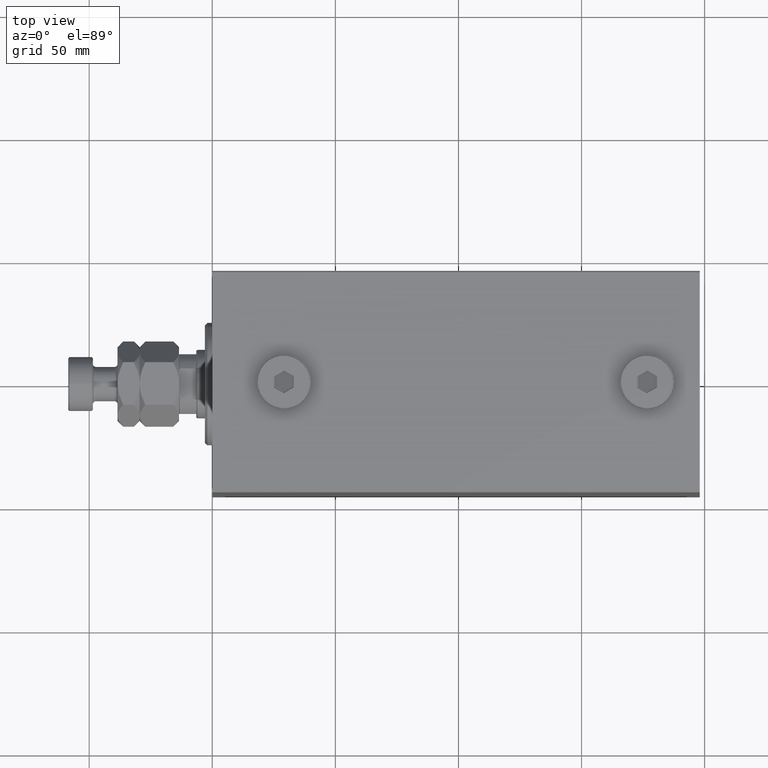
[diagram: clean part render]
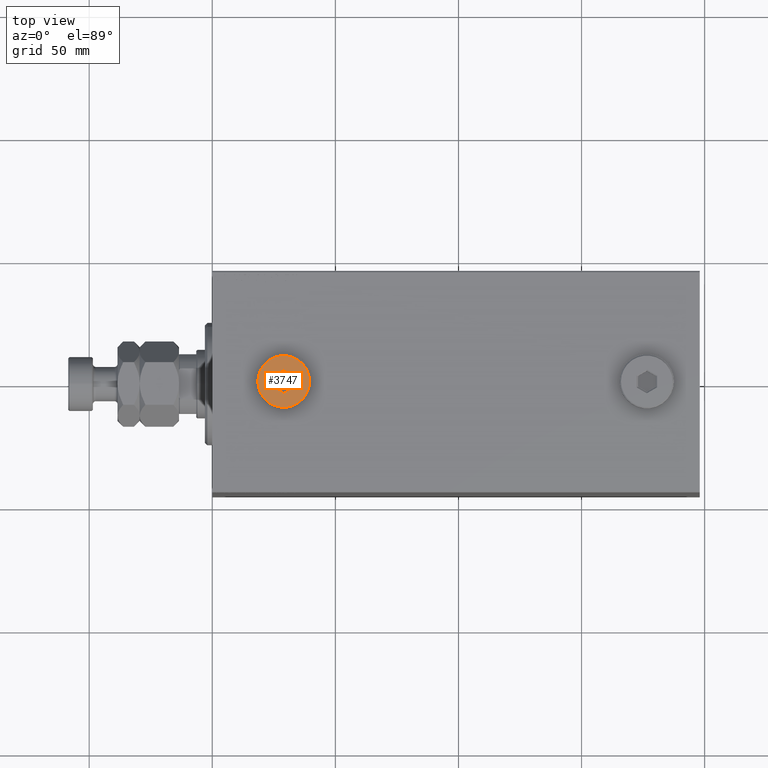
[diagram: same view with one face highlighted and labeled with its STEP entity id]
A machine part, top view. The second image highlights one B-rep face of the part: STEP entity #3747.
In plain terms, the highlighted planar face has unit normal (0, 0, 1).
Its self-contained STEP definition (entity closure, byte-faithful):
#46 = VECTOR ( 'NONE', #36959, 1000.000000000000000 ) ;
#511 = CARTESIAN_POINT ( 'NONE',  ( 0.000000000000000000, 0.000000000000000000, 5.000000000000000000 ) ) ;
#1208 = DIRECTION ( 'NONE',  ( 1.000000000000000000, 0.000000000000000000, -0.000000000000000000 ) ) ;
#1587 = EDGE_LOOP ( 'NONE', ( #9832, #26900 ) ) ;
#1783 = CARTESIAN_POINT ( 'NONE',  ( 0.2499999999999981681, -4.666914675949471736, 5.000000000000000000 ) ) ;
#3446 = CARTESIAN_POINT ( 'NONE',  ( -0.2499999999999992506, 4.666914675949470848, 5.000000000000000000 ) ) ;
#3521 = CIRCLE ( 'NONE', #9538, 10.50000000000000178 ) ;
#3747 = ADVANCED_FACE ( 'NONE', ( #44007, #8566 ), #18559, .T. ) ;
#4512 = CARTESIAN_POINT ( 'NONE',  ( -6.281144585932674641E-17, 4.811252243246876503, 5.000000000000000000 ) ) ;
#4721 = EDGE_CURVE ( 'NONE', #45540, #8142, #9625, .T. ) ;
#5860 = VECTOR ( 'NONE', #41311, 1000.000000000000000 ) ;
#6218 = EDGE_CURVE ( 'NONE', #33613, #30148, #25174, .T. ) ;
#7624 = ORIENTED_EDGE ( 'NONE', *, *, #37188, .T. ) ;
#7630 = ORIENTED_EDGE ( 'NONE', *, *, #6218, .T. ) ;
#7976 = ORIENTED_EDGE ( 'NONE', *, *, #19515, .T. ) ;
#8142 = VERTEX_POINT ( 'NONE', #38209 ) ;
#8566 = FACE_OUTER_BOUND ( 'NONE', #1587, .T. ) ;
#9538 = AXIS2_PLACEMENT_3D ( 'NONE', #39469, #17830, #32337 ) ;
#9625 = CIRCLE ( 'NONE', #14933, 10.50000000000000178 ) ;
#9832 = ORIENTED_EDGE ( 'NONE', *, *, #22606, .T. ) ;
#13310 = VERTEX_POINT ( 'NONE', #33495 ) ;
#14933 = AXIS2_PLACEMENT_3D ( 'NONE', #27806, #24467, #46136 ) ;
#15151 = ORIENTED_EDGE ( 'NONE', *, *, #16057, .T. ) ;
#16057 = EDGE_CURVE ( 'NONE', #30148, #13310, #45032, .T. ) ;
#16065 = DIRECTION ( 'NONE',  ( 1.024305408229881337E-16, 1.000000000000000000, 0.000000000000000000 ) ) ;
#16836 = CARTESIAN_POINT ( 'NONE',  ( 3.916666666666664742, 2.549963688920845239, 5.000000000000000000 ) ) ;
#17830 = DIRECTION ( 'NONE',  ( 0.000000000000000000, 0.000000000000000000, 1.000000000000000000 ) ) ;
#18371 = CARTESIAN_POINT ( 'NONE',  ( -4.166666666666664298, 2.405626121623439584, 5.000000000000000000 ) ) ;
#18559 = PLANE ( 'NONE',  #35395 ) ;
#19149 = LINE ( 'NONE', #23432, #20180 ) ;
#19515 = EDGE_CURVE ( 'NONE', #34167, #32751, #32424, .T. ) ;
#20180 = VECTOR ( 'NONE', #16065, 1000.000000000000000 ) ;
#21018 = DIRECTION ( 'NONE',  ( 0.8660254037844388186, 0.4999999999999997780, 0.000000000000000000 ) ) ;
#21101 = VECTOR ( 'NONE', #39166, 1000.000000000000000 ) ;
#22247 = EDGE_CURVE ( 'NONE', #22847, #34167, #19149, .T. ) ;
#22606 = EDGE_CURVE ( 'NONE', #8142, #45540, #3521, .T. ) ;
#22843 = CARTESIAN_POINT ( 'NONE',  ( 4.166666666666664298, -2.405626121623439584, 5.000000000000000000 ) ) ;
#22847 = VERTEX_POINT ( 'NONE', #27765 ) ;
#23432 = CARTESIAN_POINT ( 'NONE',  ( -4.166666666666664298, 2.116950987028627829, 5.000000000000000000 ) ) ;
#23451 = ORIENTED_EDGE ( 'NONE', *, *, #22247, .T. ) ;
#24422 = LINE ( 'NONE', #16836, #21101 ) ;
#24467 = DIRECTION ( 'NONE',  ( 0.000000000000000000, 0.000000000000000000, 1.000000000000000000 ) ) ;
#24548 = VECTOR ( 'NONE', #41705, 1000.000000000000000 ) ;
#25174 = LINE ( 'NONE', #33474, #5860 ) ;
#25430 = CARTESIAN_POINT ( 'NONE',  ( 4.166666666666663410, 2.405626121623439584, 5.000000000000000000 ) ) ;
#26900 = ORIENTED_EDGE ( 'NONE', *, *, #4721, .T. ) ;
#27765 = CARTESIAN_POINT ( 'NONE',  ( -4.166666666666665186, -2.405626121623437363, 5.000000000000000000 ) ) ;
#27806 = CARTESIAN_POINT ( 'NONE',  ( 0.000000000000000000, 0.000000000000000000, 5.000000000000000000 ) ) ;
#28474 = EDGE_CURVE ( 'NONE', #32751, #33613, #24422, .T. ) ;
#29370 = LINE ( 'NONE', #43195, #46 ) ;
#30148 = VERTEX_POINT ( 'NONE', #22843 ) ;
#31675 = EDGE_LOOP ( 'NONE', ( #23451, #7976, #34622, #7630, #15151, #7624 ) ) ;
#32337 = DIRECTION ( 'NONE',  ( 1.000000000000000000, 0.000000000000000000, 0.000000000000000000 ) ) ;
#32424 = LINE ( 'NONE', #3446, #36023 ) ;
#32751 = VERTEX_POINT ( 'NONE', #4512 ) ;
#33474 = CARTESIAN_POINT ( 'NONE',  ( 4.166666666666664298, -2.116950987028627384, 5.000000000000000000 ) ) ;
#33495 = CARTESIAN_POINT ( 'NONE',  ( -8.363929151985410416E-16, -4.811252243246877391, 5.000000000000000000 ) ) ;
#33613 = VERTEX_POINT ( 'NONE', #25430 ) ;
#34167 = VERTEX_POINT ( 'NONE', #18371 ) ;
#34622 = ORIENTED_EDGE ( 'NONE', *, *, #28474, .T. ) ;
#35395 = AXIS2_PLACEMENT_3D ( 'NONE', #511, #44469, #1208 ) ;
#36023 = VECTOR ( 'NONE', #21018, 1000.000000000000114 ) ;
#36959 = DIRECTION ( 'NONE',  ( -0.8660254037844384856, 0.5000000000000002220, 0.000000000000000000 ) ) ;
#37188 = EDGE_CURVE ( 'NONE', #13310, #22847, #29370, .T. ) ;
#38209 = CARTESIAN_POINT ( 'NONE',  ( -10.50000000000000178, 0.000000000000000000, 5.000000000000000000 ) ) ;
#38723 = CARTESIAN_POINT ( 'NONE',  ( 10.50000000000000178, 1.316495309083404815E-15, 5.000000000000000000 ) ) ;
#39166 = DIRECTION ( 'NONE',  ( 0.8660254037844387076, -0.4999999999999998335, 0.000000000000000000 ) ) ;
#39469 = CARTESIAN_POINT ( 'NONE',  ( 0.000000000000000000, 0.000000000000000000, 5.000000000000000000 ) ) ;
#41311 = DIRECTION ( 'NONE',  ( 1.024305408229881337E-16, -1.000000000000000000, 0.000000000000000000 ) ) ;
#41705 = DIRECTION ( 'NONE',  ( -0.8660254037844387076, -0.4999999999999998335, 0.000000000000000000 ) ) ;
#43195 = CARTESIAN_POINT ( 'NONE',  ( -3.916666666666664742, -2.549963688920843907, 5.000000000000000000 ) ) ;
#44007 = FACE_BOUND ( 'NONE', #31675, .T. ) ;
#44469 = DIRECTION ( 'NONE',  ( 0.000000000000000000, 0.000000000000000000, 1.000000000000000000 ) ) ;
#45032 = LINE ( 'NONE', #1783, #24548 ) ;
#45540 = VERTEX_POINT ( 'NONE', #38723 ) ;
#46136 = DIRECTION ( 'NONE',  ( 1.000000000000000000, 0.000000000000000000, 0.000000000000000000 ) ) ;